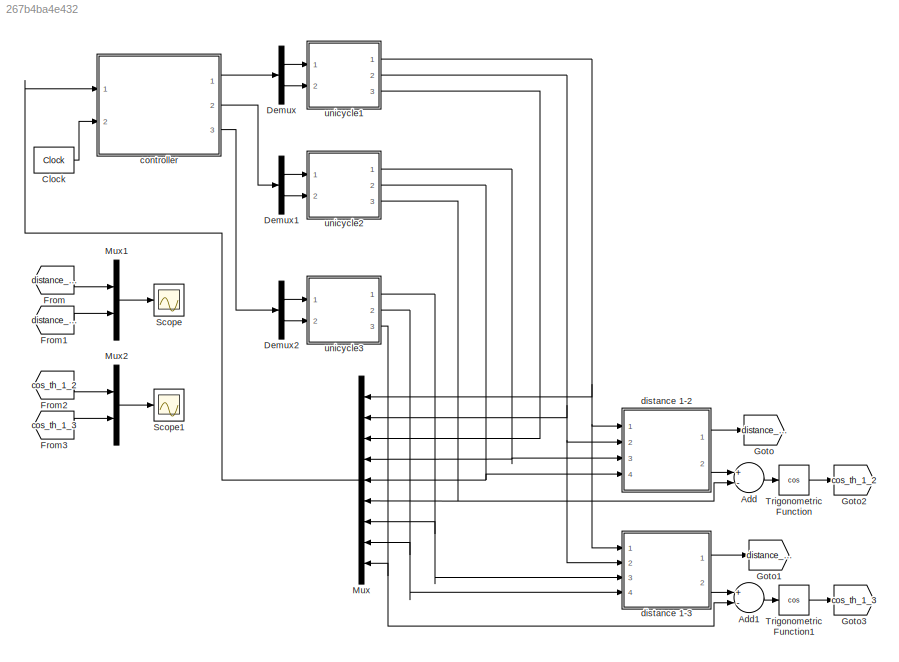
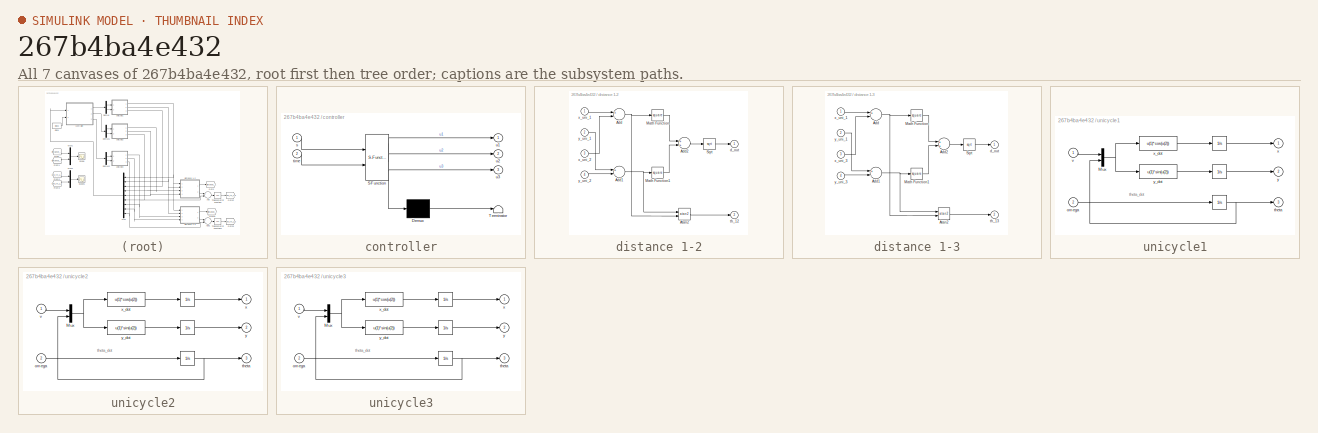
[diagram: thumbnail index - all 7 canvases of the model, root first then tree order]
MODEL slx_267b4ba4e432
KIND model
CONFIG AbsTol = auto
CONFIG EnableMultiTasking = on
CONFIG FixedStep = 1e-3
CONFIG InitFcn = init_unicycle_car_ineq
CONFIG MaxStep = auto
CONFIG MinStep = auto
CONFIG RelTol = 1e-3
CONFIG SampleTimeConstraint = Unconstrained
CONFIG Solver = FixedStepAuto
CONFIG SolverName = FixedStepAuto
CONFIG StartTime = 0.0
CONFIG StopTime = 20
BLOCK [Sum] Add
  InputSameDT = off
  Inputs = +-
  OutDataTypeStr = Inherit: Inherit via internal rule
  Ports = [2, 1]
  SaturateOnIntegerOverflow = off
BLOCK [Sum] Add1
  InputSameDT = off
  Inputs = +-
  OutDataTypeStr = Inherit: Inherit via internal rule
  Ports = [2, 1]
  SaturateOnIntegerOverflow = off
BLOCK [Clock] Clock
  DisplayTime = on
BLOCK [Demux] Demux
  DisplayOption = bar
  Outputs = 2
  Ports = [1, 2]
BLOCK [Demux] Demux1
  DisplayOption = bar
  Outputs = 2
  Ports = [1, 2]
BLOCK [Demux] Demux2
  DisplayOption = bar
  Outputs = 2
  Ports = [1, 2]
BLOCK [From] From
  GotoTag = distance_1_2
BLOCK [From] From1
  GotoTag = distance_1_3
BLOCK [From] From2
  GotoTag = cos_th_1_2
BLOCK [From] From3
  GotoTag = cos_th_1_3
BLOCK [Goto] Goto
  GotoTag = distance_1_2
BLOCK [Goto] Goto1
  GotoTag = distance_1_3
BLOCK [Goto] Goto2
  GotoTag = cos_th_1_2
BLOCK [Goto] Goto3
  GotoTag = cos_th_1_3
BLOCK [Mux] Mux
  DisplayOption = bar
  Inputs = 9
  Ports = [9, 1]
BLOCK [Mux] Mux1
  DisplayOption = bar
  Inputs = 2
  Ports = [2, 1]
BLOCK [Mux] Mux2
  DisplayOption = bar
  Inputs = 2
  Ports = [2, 1]
BLOCK [Scope] Scope
  Floating = off
  NumInputPorts = 1
  Ports = [1]
  ScopeSpecificationString = Simulink.scopes.TimeScopeBlockCfg('CurrentConfiguration', extmgr.ConfigurationSet(extmgr.Configuration('Core','General UI',true),extmgr.Configuration('Core','Source UI',true),extmgr.Configuration('Sources','WiredSimulink',true),extmgr.Configuration('Visuals','Time Domain',true,'SerializedDisplays',{struct('MinYLimReal','0.86599','MaxYLimReal','2.13568','YLabelReal','','MinYLimMag','0.86599','MaxYL...<+1443ch>
BLOCK [Scope] Scope1
  Floating = off
  NumInputPorts = 1
  Ports = [1]
  ScopeSpecificationString = Simulink.scopes.TimeScopeBlockCfg('CurrentConfiguration', extmgr.ConfigurationSet(extmgr.Configuration('Core','General UI',true),extmgr.Configuration('Core','Source UI',true),extmgr.Configuration('Sources','WiredSimulink',true,'DataLoggingVariableName','ScopeData1'),extmgr.Configuration('Visuals','Time Domain',true,'SerializedDisplays',{struct('MinYLimReal','0.86599','MaxYLimReal','2.13568','YLabe...<+1499ch>
BLOCK [Trigonometry] Trigonometric Function
  Operator = cos
  Ports = [1, 1]
BLOCK [Trigonometry] Trigonometric Function1
  Operator = cos
  Ports = [1, 1]
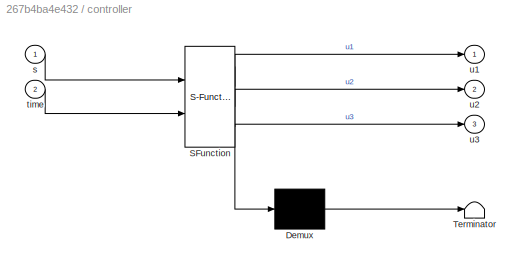
BLOCK [SubSystem] controller
  ErrorFcn = Stateflow.Translate.translate
  PermitHierarchicalResolution = ExplicitOnly
  Ports = [2, 3]
  RequestExecContextInheritance = off
  SFBlockType = MATLAB Function
  TreatAsAtomicUnit = on
BLOCK [Demux] controller/ Demux 
  Outputs = 1
  Ports = [1, 1]
BLOCK [S-Function] controller/ SFunction 
  EnableBusSupport = on
  FunctionName = sf_sfun
  Parameters = dmax,dmin
  PortCounts = [2 4]
  Ports = [2, 4]
  SFcnIsStateOwnerBlock = off
  SFunctionDeploymentMode = off
  Tag = Stateflow S-Function unicycles_clean 2
BLOCK [Terminator] controller/ Terminator 
BLOCK [Inport] controller/s
  IconDisplay = Port number
BLOCK [Inport] controller/time
  IconDisplay = Port number
  Port = 2
BLOCK [Outport] controller/u1
  IconDisplay = Port number
BLOCK [Outport] controller/u2
  IconDisplay = Port number
  Port = 2
BLOCK [Outport] controller/u3
  IconDisplay = Port number
  Port = 3
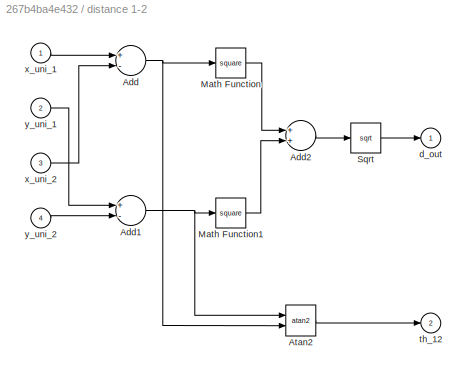
BLOCK [SubSystem] distance 1-2
  Ports = [4, 2]
  RequestExecContextInheritance = off
BLOCK [Sum] distance 1-2/Add
  InputSameDT = off
  Inputs = +-
  OutDataTypeStr = Inherit: Inherit via internal rule
  Ports = [2, 1]
  SaturateOnIntegerOverflow = off
BLOCK [Sum] distance 1-2/Add1
  InputSameDT = off
  Inputs = +-
  OutDataTypeStr = Inherit: Inherit via internal rule
  Ports = [2, 1]
  SaturateOnIntegerOverflow = off
BLOCK [Sum] distance 1-2/Add2
  InputSameDT = off
  OutDataTypeStr = Inherit: Inherit via internal rule
  Ports = [2, 1]
  SaturateOnIntegerOverflow = off
BLOCK [Trigonometry] distance 1-2/Atan2
  Operator = atan2
  Ports = [2, 1]
BLOCK [Math] distance 1-2/Math Function
  Operator = square
  Ports = [1, 1]
BLOCK [Math] distance 1-2/Math Function1
  Operator = square
  Ports = [1, 1]
BLOCK [Sqrt] distance 1-2/Sqrt
BLOCK [Outport] distance 1-2/d_out
  IconDisplay = Port number
BLOCK [Outport] distance 1-2/th_12
  IconDisplay = Port number
  Port = 2
BLOCK [Inport] distance 1-2/x_uni_1
  IconDisplay = Port number
BLOCK [Inport] distance 1-2/x_uni_2
  IconDisplay = Port number
  Port = 3
BLOCK [Inport] distance 1-2/y_uni_1
  IconDisplay = Port number
  Port = 2
BLOCK [Inport] distance 1-2/y_uni_2
  IconDisplay = Port number
  Port = 4
BLOCK [SubSystem] distance 1-3
  Ports = [4, 2]
  RequestExecContextInheritance = off
BLOCK [Sum] distance 1-3/Add
  InputSameDT = off
  Inputs = +-
  OutDataTypeStr = Inherit: Inherit via internal rule
  Ports = [2, 1]
  SaturateOnIntegerOverflow = off
BLOCK [Sum] distance 1-3/Add1
  InputSameDT = off
  Inputs = +-
  OutDataTypeStr = Inherit: Inherit via internal rule
  Ports = [2, 1]
  SaturateOnIntegerOverflow = off
BLOCK [Sum] distance 1-3/Add2
  InputSameDT = off
  OutDataTypeStr = Inherit: Inherit via internal rule
  Ports = [2, 1]
  SaturateOnIntegerOverflow = off
BLOCK [Trigonometry] distance 1-3/Atan2
  Operator = atan2
  Ports = [2, 1]
BLOCK [Math] distance 1-3/Math Function
  Operator = square
  Ports = [1, 1]
BLOCK [Math] distance 1-3/Math Function1
  Operator = square
  Ports = [1, 1]
BLOCK [Sqrt] distance 1-3/Sqrt
BLOCK [Outport] distance 1-3/d_out
  IconDisplay = Port number
BLOCK [Outport] distance 1-3/th_13
  IconDisplay = Port number
  Port = 2
BLOCK [Inport] distance 1-3/x_uni_1
  IconDisplay = Port number
BLOCK [Inport] distance 1-3/x_uni_3
  IconDisplay = Port number
  Port = 3
BLOCK [Inport] distance 1-3/y_uni_1
  IconDisplay = Port number
  Port = 2
BLOCK [Inport] distance 1-3/y_uni_3
  IconDisplay = Port number
  Port = 4
BLOCK [SubSystem] unicycle1
  Ports = [2, 3]
  RequestExecContextInheritance = off
BLOCK [Integrator] unicycle1/ 
  InitialCondition = th1
  Ports = [1, 1]
BLOCK [Integrator] unicycle1/   
  InitialCondition = x1
  Ports = [1, 1]
BLOCK [Integrator] unicycle1/    
  InitialCondition = y1
  Ports = [1, 1]
BLOCK [Mux] unicycle1/Mux
  DisplayOption = bar
  Inputs = 2
  Ports = [2, 1]
BLOCK [Inport] unicycle1/omega
  IconDisplay = Port number
  Port = 2
BLOCK [Outport] unicycle1/theta
  IconDisplay = Port number
  Port = 3
BLOCK [Inport] unicycle1/v
  IconDisplay = Port number
BLOCK [Outport] unicycle1/x
  IconDisplay = Port number
BLOCK [Fcn] unicycle1/x_dot
  Expr = u(1)*cos(u(2))
BLOCK [Outport] unicycle1/y
  IconDisplay = Port number
  Port = 2
BLOCK [Fcn] unicycle1/y_dot
  Expr = u(1)*sin(u(2))
BLOCK [SubSystem] unicycle2
  Ports = [2, 3]
  RequestExecContextInheritance = off
BLOCK [Integrator] unicycle2/ 
  InitialCondition = th2
  Ports = [1, 1]
BLOCK [Integrator] unicycle2/   
  InitialCondition = x2
  Ports = [1, 1]
BLOCK [Integrator] unicycle2/    
  InitialCondition = y2
  Ports = [1, 1]
BLOCK [Mux] unicycle2/Mux
  DisplayOption = bar
  Inputs = 2
  Ports = [2, 1]
BLOCK [Inport] unicycle2/omega
  IconDisplay = Port number
  Port = 2
BLOCK [Outport] unicycle2/theta
  IconDisplay = Port number
  Port = 3
BLOCK [Inport] unicycle2/v
  IconDisplay = Port number
BLOCK [Outport] unicycle2/x
  IconDisplay = Port number
BLOCK [Fcn] unicycle2/x_dot
  Expr = u(1)*cos(u(2))
BLOCK [Outport] unicycle2/y
  IconDisplay = Port number
  Port = 2
BLOCK [Fcn] unicycle2/y_dot
  Expr = u(1)*sin(u(2))
BLOCK [SubSystem] unicycle3
  Ports = [2, 3]
  RequestExecContextInheritance = off
BLOCK [Integrator] unicycle3/ 
  InitialCondition = th3
  Ports = [1, 1]
BLOCK [Integrator] unicycle3/   
  InitialCondition = x3
  Ports = [1, 1]
BLOCK [Integrator] unicycle3/    
  InitialCondition = y3
  Ports = [1, 1]
BLOCK [Mux] unicycle3/Mux
  DisplayOption = bar
  Inputs = 2
  Ports = [2, 1]
BLOCK [Inport] unicycle3/omega
  IconDisplay = Port number
  Port = 2
BLOCK [Outport] unicycle3/theta
  IconDisplay = Port number
  Port = 3
BLOCK [Inport] unicycle3/v
  IconDisplay = Port number
BLOCK [Outport] unicycle3/x
  IconDisplay = Port number
BLOCK [Fcn] unicycle3/x_dot
  Expr = u(1)*cos(u(2))
BLOCK [Outport] unicycle3/y
  IconDisplay = Port number
  Port = 2
BLOCK [Fcn] unicycle3/y_dot
  Expr = u(1)*sin(u(2))
ANNOTATION unicycle1: theta_dot
ANNOTATION unicycle2: theta_dot
ANNOTATION unicycle3: theta_dot
LINE Add1:1 -> Trigonometric Function1:1
LINE Add:1 -> Trigonometric Function:1
LINE Clock:1 -> controller:2
LINE Demux1:1 -> unicycle2:1
LINE Demux1:2 -> unicycle2:2
LINE Demux2:1 -> unicycle3:1
LINE Demux2:2 -> unicycle3:2
LINE Demux:1 -> unicycle1:1
LINE Demux:2 -> unicycle1:2
LINE From1:1 -> Mux1:2
LINE From2:1 -> Mux2:1
LINE From3:1 -> Mux2:2
LINE From:1 -> Mux1:1
LINE Mux1:1 -> Scope:1
LINE Mux2:1 -> Scope1:1
LINE Mux:1 -> controller:1
LINE Trigonometric Function1:1 -> Goto3:1
LINE Trigonometric Function:1 -> Goto2:1
LINE controller:1 -> Demux:1
LINE controller:2 -> Demux1:1
LINE controller:3 -> Demux2:1
NET distance 1-2/Add1:1 -> distance 1-2/Atan2:1, distance 1-2/Math Function1:1
LINE distance 1-2/Add2:1 -> distance 1-2/Sqrt:1
NET distance 1-2/Add:1 -> distance 1-2/Atan2:2, distance 1-2/Math Function:1
LINE distance 1-2/Atan2:1 -> distance 1-2/th_12:1
LINE distance 1-2/Math Function1:1 -> distance 1-2/Add2:2
LINE distance 1-2/Math Function:1 -> distance 1-2/Add2:1
LINE distance 1-2/Sqrt:1 -> distance 1-2/d_out:1
LINE distance 1-2/x_uni_1:1 -> distance 1-2/Add:1
LINE distance 1-2/x_uni_2:1 -> distance 1-2/Add:2
LINE distance 1-2/y_uni_1:1 -> distance 1-2/Add1:1
LINE distance 1-2/y_uni_2:1 -> distance 1-2/Add1:2
LINE distance 1-2:1 -> Goto:1
LINE distance 1-2:2 -> Add:1
NET distance 1-3/Add1:1 -> distance 1-3/Atan2:1, distance 1-3/Math Function1:1
LINE distance 1-3/Add2:1 -> distance 1-3/Sqrt:1
NET distance 1-3/Add:1 -> distance 1-3/Atan2:2, distance 1-3/Math Function:1
LINE distance 1-3/Atan2:1 -> distance 1-3/th_13:1
LINE distance 1-3/Math Function1:1 -> distance 1-3/Add2:2
LINE distance 1-3/Math Function:1 -> distance 1-3/Add2:1
LINE distance 1-3/Sqrt:1 -> distance 1-3/d_out:1
LINE distance 1-3/x_uni_1:1 -> distance 1-3/Add:1
LINE distance 1-3/x_uni_3:1 -> distance 1-3/Add:2
LINE distance 1-3/y_uni_1:1 -> distance 1-3/Add1:1
LINE distance 1-3/y_uni_3:1 -> distance 1-3/Add1:2
LINE distance 1-3:1 -> Goto1:1
LINE distance 1-3:2 -> Add1:1
LINE unicycle1/    :1 -> unicycle1/y:1
LINE unicycle1/   :1 -> unicycle1/x:1
NET unicycle1/ :1 -> unicycle1/Mux:2, unicycle1/theta:1
NET unicycle1/Mux:1 -> unicycle1/x_dot:1, unicycle1/y_dot:1
LINE unicycle1/omega:1 -> unicycle1/ :1
LINE unicycle1/v:1 -> unicycle1/Mux:1
LINE unicycle1/x_dot:1 -> unicycle1/   :1
LINE unicycle1/y_dot:1 -> unicycle1/    :1
NET unicycle1:1 -> Mux:1, distance 1-2:1, distance 1-3:1
NET unicycle1:2 -> Mux:2, distance 1-2:2, distance 1-3:2
LINE unicycle1:3 -> Mux:3
LINE unicycle2/    :1 -> unicycle2/y:1
LINE unicycle2/   :1 -> unicycle2/x:1
NET unicycle2/ :1 -> unicycle2/Mux:2, unicycle2/theta:1
NET unicycle2/Mux:1 -> unicycle2/x_dot:1, unicycle2/y_dot:1
LINE unicycle2/omega:1 -> unicycle2/ :1
LINE unicycle2/v:1 -> unicycle2/Mux:1
LINE unicycle2/x_dot:1 -> unicycle2/   :1
LINE unicycle2/y_dot:1 -> unicycle2/    :1
NET unicycle2:1 -> Mux:4, distance 1-2:3
NET unicycle2:2 -> Mux:5, distance 1-2:4
NET unicycle2:3 -> Add:2, Mux:6
LINE unicycle3/    :1 -> unicycle3/y:1
LINE unicycle3/   :1 -> unicycle3/x:1
NET unicycle3/ :1 -> unicycle3/Mux:2, unicycle3/theta:1
NET unicycle3/Mux:1 -> unicycle3/x_dot:1, unicycle3/y_dot:1
LINE unicycle3/omega:1 -> unicycle3/ :1
LINE unicycle3/v:1 -> unicycle3/Mux:1
LINE unicycle3/x_dot:1 -> unicycle3/   :1
LINE unicycle3/y_dot:1 -> unicycle3/    :1
NET unicycle3:1 -> Mux:7, distance 1-3:3
NET unicycle3:2 -> Mux:8, distance 1-3:4
NET unicycle3:3 -> Add1:2, Mux:9
note: NET lines group one-source signal fan-out (src -> all destinations, sorted); 1:1 wires keep LINE
CHART controller states=1 transitions=1
  STATE_LABEL 'eML_blk_kernel()'
  STATE_LABEL 'SCRIPT:\nfunction [u1, u2, u3] = fcn(s, time, dmin, dmax)\n\n%unpacking state vector\nx1 = s(1);\ny1 = s(2);\nth1 = s(3);\nx2 = s(4);\ny2 = s(5);\nth2 = s(6);\nx3 = s(7);\ny3 = s(8);\nth3 = s(9);\n\nv1r = 2*sin(time);\nu1r = 2*cos(2*time);\n% v1r = sin(time);\n% u1r = cos(2*time);\nalpha12 = 0.4;\nalpha13 = 0.4;\nu1 = [v1r; u1r];\nu2 = [0; 0];\nu3 = [0; 0];\n\nK_bar = [cos(th1)*v1r; sin(th1)*v1r; u1r; 0; 0; 0; 0; 0; 0];\n...<+2994ch>'
